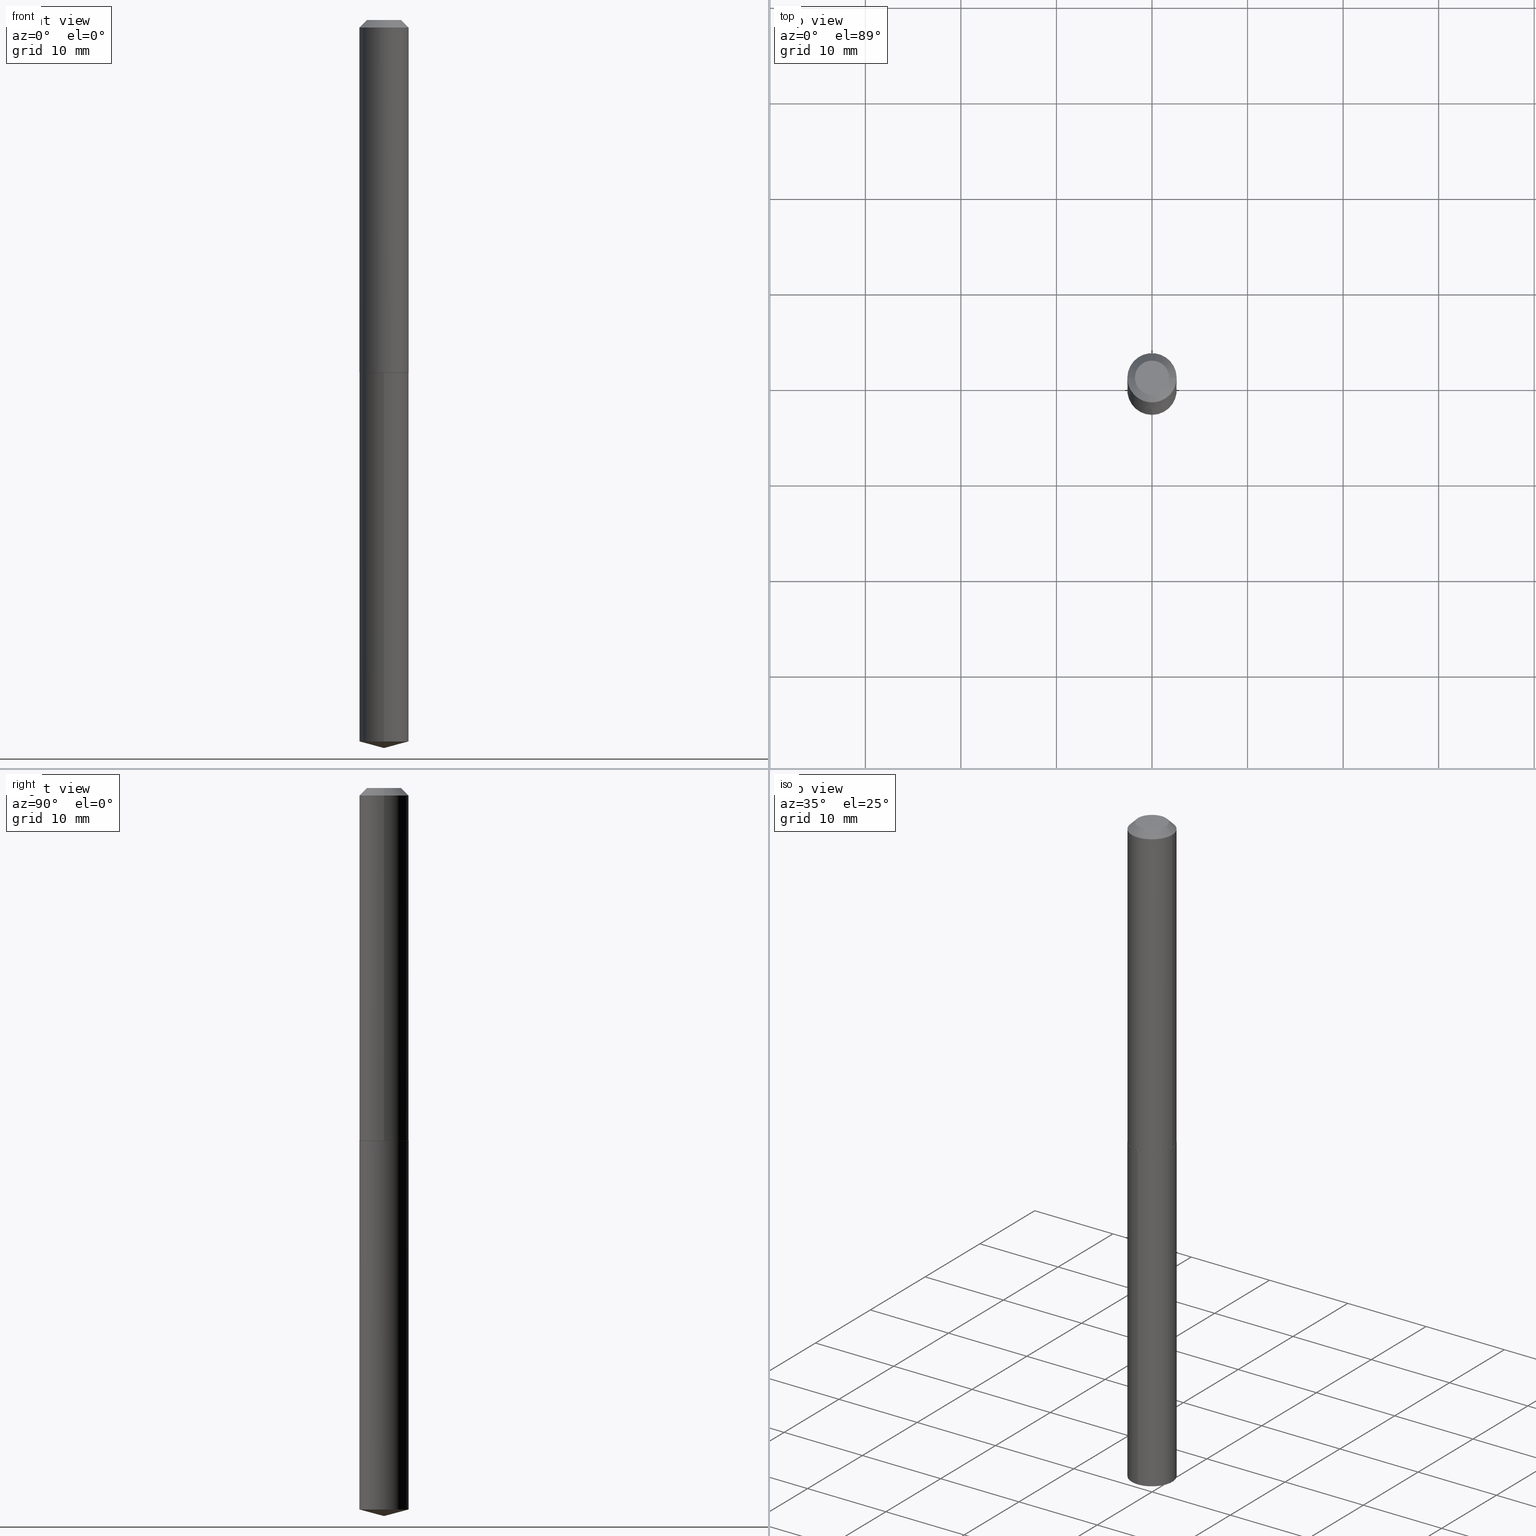
[diagram: canonical four-view strip — front | top / right | iso, engineering-drawing reading convention]
A machine part, canonical four-view strip (front | top / right | iso — engineering-drawing reading convention). The complete STEP part file that produces these views, byte-faithful:
ISO-10303-21;
HEADER;
FILE_DESCRIPTION (( 'STEP AP203' ),
    '1' );
FILE_NAME ('58047.STEP',
    '2024-04-23T00:52:28',
    ( '' ),
    ( '' ),
    'SwSTEP 2.0',
    'SolidWorks 2023',
    '' );
FILE_SCHEMA (( 'CONFIG_CONTROL_DESIGN' ));
ENDSEC;

DATA;
#1 = FACE_OUTER_BOUND ( 'NONE', #98, .T. ) ;
#2 = EDGE_CURVE ( 'NONE', #268, #196, #209, .T. ) ;
#3 = LINE ( 'NONE', #76, #219 ) ;
#4 = CARTESIAN_POINT ( 'NONE',  ( -8.894219840177136359E-28, 1.269850139145737589E-13, 36.37007874015748143 ) ) ;
#5 = LINE ( 'NONE', #186, #68 ) ;
#6 = APPROVAL_DATE_TIME ( #333, #191 ) ;
#7 = AXIS2_PLACEMENT_3D ( 'NONE', #4, #278, #222 ) ;
#8 = ORIENTED_EDGE ( 'NONE', *, *, #261, .F. ) ;
#9 = VERTEX_POINT ( 'NONE', #299 ) ;
#10 = AXIS2_PLACEMENT_3D ( 'NONE', #260, #97, #371 ) ;
#11 = VERTEX_POINT ( 'NONE', #18 ) ;
#12 = EDGE_LOOP ( 'NONE', ( #108, #129 ) ) ;
#13 = DIRECTION ( 'NONE',  ( 6.863315791527702148E-15, 0.9659258262890705327, 0.2588190451025121908 ) ) ;
#14 = EDGE_CURVE ( 'NONE', #296, #9, #124, .T. ) ;
#15 = ORIENTED_EDGE ( 'NONE', *, *, #67, .F. ) ;
#16 = CIRCLE ( 'NONE', #227, 0.1015500000000000014 ) ;
#17 = DIRECTION ( 'NONE',  ( 1.000000000000000000, -6.982962677686270655E-15, 0.000000000000000000 ) ) ;
#18 = CARTESIAN_POINT ( 'NONE',  ( 7.336430638959078659E-29, -1.047440933153284496E-14, -3.000000000000000444 ) ) ;
#19 = CARTESIAN_POINT ( 'NONE',  ( 3.553510722267622762E-29, -5.073471533472975620E-15, -1.453100000000000502 ) ) ;
#20 = APPROVAL_DATE_TIME ( #174, #295 ) ;
#21 = ORIENTED_EDGE ( 'NONE', *, *, #170, .F. ) ;
#22 = CARTESIAN_POINT ( 'NONE',  ( 7.336407175846698698E-29, -1.047444293204521195E-14, -3.000000000000000444 ) ) ;
#23 = FACE_OUTER_BOUND ( 'NONE', #345, .T. ) ;
#24 = EDGE_CURVE ( 'NONE', #34, #196, #38, .T. ) ;
#25 = DIRECTION ( 'NONE',  ( 0.7071067811867406405, -2.468850131084279700E-15, 0.7071067811863543939 ) ) ;
#26 = AXIS2_PLACEMENT_3D ( 'NONE', #292, #46, #316 ) ;
#27 = CC_DESIGN_PERSON_AND_ORGANIZATION_ASSIGNMENT ( #377, #347, ( #122 ) ) ;
#28 = AXIS2_PLACEMENT_3D ( 'NONE', #236, #81, #266 ) ;
#29 = PLANE ( 'NONE',  #262 ) ;
#30 = DIRECTION ( 'NONE',  ( 6.982962677686265922E-15, 1.000000000000000000, -3.491469777177614591E-15 ) ) ;
#31 = MANIFOLD_SOLID_BREP ( 'Body-Move/Copy2[2]', #111 ) ;
#32 = CARTESIAN_POINT ( 'NONE',  ( -0.1010500000000002785, -4.352818871813282583E-15, -1.453100000000000058 ) ) ;
#33 = CONICAL_SURFACE ( 'NONE', #7, 146.9311341562581674, 1.308996938995752535 ) ;
#34 = VERTEX_POINT ( 'NONE', #351 ) ;
#35 = MANIFOLD_SOLID_BREP ( 'Body-Move/Copy2[1]', #368 ) ;
#36 = EDGE_LOOP ( 'NONE', ( #166, #64, #205, #259 ) ) ;
#37 = ORIENTED_EDGE ( 'NONE', *, *, #221, .T. ) ;
#38 = CIRCLE ( 'NONE', #26, 0.1015500000000000014 ) ;
#39 = CONICAL_SURFACE ( 'NONE', #298, 0.1015500000000001818, 0.7853981633977213939 ) ;
#40 = CARTESIAN_POINT ( 'NONE',  ( 7.215561481644546196E-16, 0.1015499999999896485, -2.972789759508621010 ) ) ;
#41 = EDGE_CURVE ( 'NONE', #70, #62, #16, .T. ) ;
#42 = ORIENTED_EDGE ( 'NONE', *, *, #14, .F. ) ;
#43 = DIRECTION ( 'NONE',  ( -2.445468806185136597E-29, 3.491481338843145583E-15, 1.000000000000000000 ) ) ;
#44 = VERTEX_POINT ( 'NONE', #271 ) ;
#45 = LENGTH_MEASURE_WITH_UNIT ( LENGTH_MEASURE( 0.02539999999999999897 ), #202 );
#46 = DIRECTION ( 'NONE',  ( -2.445468806185136597E-29, 3.491481338843145583E-15, 1.000000000000000000 ) ) ;
#47 = DIRECTION ( 'NONE',  ( 1.000000000000000000, 0.000000000000000000, 0.000000000000000000 ) ) ;
#48 = ORIENTED_EDGE ( 'NONE', *, *, #383, .T. ) ;
#49 = CALENDAR_DATE ( 2024, 22, 4 ) ;
#50 = ORIENTED_EDGE ( 'NONE', *, *, #83, .F. ) ;
#51 = DIRECTION ( 'NONE',  ( -6.745023994389847810E-15, -0.9659258262890687563, 0.2588190451025189631 ) ) ;
#52 = CARTESIAN_POINT ( 'NONE',  ( 0.1015500000000000985, -7.091198599190409793E-16, 4.951757515820777276E-30 ) ) ;
#53 = DIRECTION ( 'NONE',  ( -0.7071067811867406405, 7.493145998871051513E-15, 0.7071067811863543939 ) ) ;
#54 = PRODUCT_DEFINITION_FORMATION_WITH_SPECIFIED_SOURCE ( 'ANY', '', #122, .NOT_KNOWN. ) ;
#55 = FACE_OUTER_BOUND ( 'NONE', #136, .T. ) ;
#56 = CARTESIAN_POINT ( 'NONE',  ( 7.215561481644172473E-16, 0.1015499999999949360, -1.453100000000000724 ) ) ;
#57 = PERSON ( 'UNSPECIFIED', 'UNSPECIFIED', 'UNSPECIFIED', ('UNSPECIFIED'), ('UNSPECIFIED'), ('UNSPECIFIED') ) ;
#58 = DIRECTION ( 'NONE',  ( -2.438088387897960049E-29, 3.491481338843145188E-15, 1.000000000000000000 ) ) ;
#59 = DIRECTION ( 'NONE',  ( 1.000000000000000000, -6.982962677686270655E-15, 0.000000000000000000 ) ) ;
#60 = ORIENTED_EDGE ( 'NONE', *, *, #2, .F. ) ;
#61 = AXIS2_PLACEMENT_3D ( 'NONE', #19, #354, #144 ) ;
#62 = VERTEX_POINT ( 'NONE', #232 ) ;
#63 = ADVANCED_FACE ( 'NONE', ( #380 ), #387, .T. ) ;
#64 = ORIENTED_EDGE ( 'NONE', *, *, #2, .T. ) ;
#65 = FACE_OUTER_BOUND ( 'NONE', #12, .T. ) ;
#66 = CARTESIAN_POINT ( 'NONE',  ( 3.553510722267622201E-29, -5.073471533472974831E-15, -1.453100000000000058 ) ) ;
#67 = EDGE_CURVE ( 'NONE', #62, #70, #385, .T. ) ;
#68 = VECTOR ( 'NONE', #25, 39.37007874015748143 ) ;
#69 = ORIENTED_EDGE ( 'NONE', *, *, #335, .F. ) ;
#70 = VERTEX_POINT ( 'NONE', #112 ) ;
#71 = DIRECTION ( 'NONE',  ( 0.000000000000000000, 0.000000000000000000, 1.000000000000000000 ) ) ;
#72 = CYLINDRICAL_SURFACE ( 'NONE', #369, 0.1015500000000000985 ) ;
#73 = DIRECTION ( 'NONE',  ( 1.000000000000000000, -6.982962677686268288E-15, 4.876182450887181548E-29 ) ) ;
#74 = ORIENTED_EDGE ( 'NONE', *, *, #390, .T. ) ;
#75 = PERSON_AND_ORGANIZATION_ROLE ( 'creator' ) ;
#76 = CARTESIAN_POINT ( 'NONE',  ( -7.091198599190048889E-16, -0.1015500000000050806, -1.453100000000000058 ) ) ;
#77 = DIRECTION ( 'NONE',  ( 0.7071067811865453523, -7.319954787623248157E-15, -0.7071067811865496822 ) ) ;
#78 = CIRCLE ( 'NONE', #302, 0.1015500000000001818 ) ;
#79 = APPLICATION_PROTOCOL_DEFINITION ( 'international standard', 'config_control_design', 1994, #367 ) ;
#80 = ORIENTED_EDGE ( 'NONE', *, *, #329, .F. ) ;
#81 = DIRECTION ( 'NONE',  ( -2.445476879653025939E-29, 3.491469777177614591E-15, 1.000000000000000000 ) ) ;
#82 = ORIENTED_EDGE ( 'NONE', *, *, #365, .F. ) ;
#83 = EDGE_CURVE ( 'NONE', #296, #319, #323, .T. ) ;
#84 = VECTOR ( 'NONE', #77, 39.37007874015748143 ) ;
#85 = CIRCLE ( 'NONE', #132, 0.1015500000000001818 ) ;
#86 = CARTESIAN_POINT ( 'NONE',  ( 3.552287987864530521E-29, -5.071725792803555694E-15, -1.452600000000000557 ) ) ;
#87 = CC_DESIGN_PERSON_AND_ORGANIZATION_ASSIGNMENT ( #109, #75, ( #179 ) ) ;
#88 = DIRECTION ( 'NONE',  ( -6.982962677686266711E-15, -1.000000000000000000, 5.380301316916323039E-15 ) ) ;
#89 = CARTESIAN_POINT ( 'NONE',  ( 0.1015500000000000014, -8.182286517578893896E-16, -0.03125000000000019429 ) ) ;
#90 = VECTOR ( 'NONE', #361, 39.37007874015748143 ) ;
#91 = FACE_OUTER_BOUND ( 'NONE', #321, .T. ) ;
#92 = DATE_AND_TIME ( #225, #274 ) ;
#93 = CARTESIAN_POINT ( 'NONE',  ( 6.296697863213853370E-29, -1.145071415122124769E-15, -1.453100000000000502 ) ) ;
#94 = AXIS2_PLACEMENT_3D ( 'NONE', #356, #215, #73 ) ;
#95 = ADVANCED_FACE ( 'NONE', ( #23 ), #150, .T. ) ;
#96 = ORIENTED_EDGE ( 'NONE', *, *, #247, .T. ) ;
#97 = DIRECTION ( 'NONE',  ( -2.445468806185136597E-29, 3.491481338843145583E-15, 1.000000000000000000 ) ) ;
#98 = EDGE_LOOP ( 'NONE', ( #226, #115, #104 ) ) ;
#99 = ADVANCED_FACE ( 'NONE', ( #168 ), #194, .T. ) ;
#100 = ORIENTED_EDGE ( 'NONE', *, *, #83, .T. ) ;
#101 = PRODUCT_RELATED_PRODUCT_CATEGORY ( 'detail', '', ( #122 ) ) ;
#102 = AXIS2_PLACEMENT_3D ( 'NONE', #203, #287, #244 ) ;
#103 = CIRCLE ( 'NONE', #113, 0.1015500000000000014 ) ;
#104 = ORIENTED_EDGE ( 'NONE', *, *, #185, .F. ) ;
#105 = APPLICATION_PROTOCOL_DEFINITION ( 'international standard', 'config_control_design', 1994, #307 ) ;
#106 = LOCAL_TIME ( 20, 52, 28.00000000000000000, #126 ) ;
#107 = DIRECTION ( 'NONE',  ( -2.445476879653025939E-29, 3.491469777177614591E-15, 1.000000000000000000 ) ) ;
#108 = ORIENTED_EDGE ( 'NONE', *, *, #329, .T. ) ;
#109 = PERSON_AND_ORGANIZATION ( #57, #331 ) ;
#110 = CARTESIAN_POINT ( 'NONE',  ( 3.553510722267622762E-29, -5.073471533472975620E-15, -1.453100000000000502 ) ) ;
#111 = CLOSED_SHELL ( 'NONE', ( #99, #304, #176, #257, #300, #95, #157, #327 ) ) ;
#112 = CARTESIAN_POINT ( 'NONE',  ( 7.215561481644546196E-16, 0.1015499999999949360, -1.453100000000000724 ) ) ;
#113 = AXIS2_PLACEMENT_3D ( 'NONE', #310, #373, #178 ) ;
#114 = PERSON_AND_ORGANIZATION ( #57, #331 ) ;
#115 = ORIENTED_EDGE ( 'NONE', *, *, #335, .T. ) ;
#116 = EDGE_CURVE ( 'NONE', #374, #62, #3, .T. ) ;
#117 = DIRECTION ( 'NONE',  ( -2.445476879653026220E-29, 3.491469777177614591E-15, 1.000000000000000000 ) ) ;
#118 = PERSON_AND_ORGANIZATION ( #57, #331 ) ;
#119 = CARTESIAN_POINT ( 'NONE',  ( 7.269876893391419667E-29, -1.037942239948364055E-14, -2.972789759508620122 ) ) ;
#120 = DIMENSIONAL_EXPONENTS ( 1.000000000000000000, 0.000000000000000000, 0.000000000000000000, 0.000000000000000000, 0.000000000000000000, 0.000000000000000000, 0.000000000000000000 ) ;
#121 = DIRECTION ( 'NONE',  ( -0.7071067811865453523, 2.468850131082234184E-15, -0.7071067811865496822 ) ) ;
#122 = PRODUCT ( '58047', '58047', '', ( #293 ) ) ;
#123 = DIRECTION ( 'NONE',  ( 1.000000000000000000, -6.982962677686270655E-15, 0.000000000000000000 ) ) ;
#124 = CIRCLE ( 'NONE', #229, 0.1010500000000002785 ) ;
#125 = DIRECTION ( 'NONE',  ( 2.445476879653025659E-29, -3.491469777177614591E-15, -1.000000000000000000 ) ) ;
#126 = COORDINATED_UNIVERSAL_TIME_OFFSET ( 5, 0, .BEHIND. ) ;
#127 = CARTESIAN_POINT ( 'NONE',  ( 3.552287987864530521E-29, -5.071725792803555694E-15, -1.452600000000000557 ) ) ;
#128 = PERSON_AND_ORGANIZATION ( #57, #331 ) ;
#129 = ORIENTED_EDGE ( 'NONE', *, *, #141, .T. ) ;
#130 = ORIENTED_EDGE ( 'NONE', *, *, #14, .T. ) ;
#131 = DIRECTION ( 'NONE',  ( -2.445468806185136597E-29, 3.491481338843145583E-15, 1.000000000000000000 ) ) ;
#132 = AXIS2_PLACEMENT_3D ( 'NONE', #86, #188, #305 ) ;
#133 = EDGE_CURVE ( 'NONE', #237, #196, #207, .T. ) ;
#134 = EDGE_LOOP ( 'NONE', ( #177, #290 ) ) ;
#135 = DIRECTION ( 'NONE',  ( -2.445468806185136597E-29, 3.491481338843145583E-15, 1.000000000000000000 ) ) ;
#136 = EDGE_LOOP ( 'NONE', ( #370, #37, #15, #308 ) ) ;
#137 = AXIS2_PLACEMENT_3D ( 'NONE', #272, #314, #389 ) ;
#138 = CIRCLE ( 'NONE', #10, 0.07030000000000000138 ) ;
#139 = CARTESIAN_POINT ( 'NONE',  ( 3.553510722267622762E-29, -5.073471533472975620E-15, -1.453100000000000502 ) ) ;
#140 = COORDINATED_UNIVERSAL_TIME_OFFSET ( 5, 0, .BEHIND. ) ;
#141 = EDGE_CURVE ( 'NONE', #268, #44, #324, .T. ) ;
#142 = DIRECTION ( 'NONE',  ( -6.982962677686266711E-15, -1.000000000000000000, 2.690150658458161520E-15 ) ) ;
#143 = CARTESIAN_POINT ( 'NONE',  ( -7.091198599189680096E-16, -0.1015500000000104236, -2.972789759508619678 ) ) ;
#144 = DIRECTION ( 'NONE',  ( -6.982962677686266711E-15, -1.000000000000000000, 2.690150658458161520E-15 ) ) ;
#145 = PERSON_AND_ORGANIZATION ( #57, #331 ) ;
#146 = ORIENTED_EDGE ( 'NONE', *, *, #379, .F. ) ;
#147 = ADVANCED_FACE ( 'NONE', ( #55 ), #325, .T. ) ;
#148 = CIRCLE ( 'NONE', #358, 0.1010500000000002785 ) ;
#149 = ADVANCED_BREP_SHAPE_REPRESENTATION ( '58047', ( #35, #31, #249 ), #363 ) ;
#150 = CYLINDRICAL_SURFACE ( 'NONE', #137, 0.1015500000000000985 ) ;
#151 = APPROVAL_STATUS ( 'not_yet_approved' ) ;
#152 = CC_DESIGN_PERSON_AND_ORGANIZATION_ASSIGNMENT ( #118, #251, ( #165 ) ) ;
#153 = CONICAL_SURFACE ( 'NONE', #279, 146.9311341562581674, 1.308996938995752535 ) ;
#154 = CARTESIAN_POINT ( 'NONE',  ( 3.553510722267622762E-29, -5.073471533472975620E-15, -1.453100000000000502 ) ) ;
#155 = LINE ( 'NONE', #56, #90 ) ;
#156 = CARTESIAN_POINT ( 'NONE',  ( 3.552287987864530521E-29, -5.071725792803555694E-15, -1.452600000000000557 ) ) ;
#157 = ADVANCED_FACE ( 'NONE', ( #175 ), #348, .T. ) ;
#158 = AXIS2_PLACEMENT_3D ( 'NONE', #93, #58, #250 ) ;
#159 = DIRECTION ( 'NONE',  ( 2.445468806185136597E-29, -3.491481338843145583E-15, -1.000000000000000000 ) ) ;
#160 = CC_DESIGN_DATE_AND_TIME_ASSIGNMENT ( #206, #315, ( #179 ) ) ;
#161 = SHAPE_DEFINITION_REPRESENTATION ( #364, #149 ) ;
#162 = EDGE_LOOP ( 'NONE', ( #48, #339, #82, #253 ) ) ;
#163 = ORIENTED_EDGE ( 'NONE', *, *, #234, .T. ) ;
#164 = CARTESIAN_POINT ( 'NONE',  ( -1.572288661602391346E-48, 2.244811509095903990E-34, 6.429395695523583120E-20 ) ) ;
#165 = SECURITY_CLASSIFICATION ( '', '', #224 ) ;
#166 = ORIENTED_EDGE ( 'NONE', *, *, #141, .F. ) ;
#167 = LINE ( 'NONE', #22, #184 ) ;
#168 = FACE_OUTER_BOUND ( 'NONE', #36, .T. ) ;
#169 = PERSON_AND_ORGANIZATION ( #57, #331 ) ;
#170 = EDGE_CURVE ( 'NONE', #319, #34, #359, .T. ) ;
#171 = ORIENTED_EDGE ( 'NONE', *, *, #24, .T. ) ;
#172 = DATE_AND_TIME ( #322, #220 ) ;
#173 = DIRECTION ( 'NONE',  ( 1.000000000000000000, -6.982962677686269077E-15, 0.000000000000000000 ) ) ;
#174 = DATE_AND_TIME ( #49, #372 ) ;
#175 = FACE_OUTER_BOUND ( 'NONE', #263, .T. ) ;
#176 = ADVANCED_FACE ( 'NONE', ( #189 ), #39, .T. ) ;
#177 = ORIENTED_EDGE ( 'NONE', *, *, #67, .T. ) ;
#178 = DIRECTION ( 'NONE',  ( 1.000000000000000000, -6.982962677686266711E-15, 0.000000000000000000 ) ) ;
#179 = PRODUCT_DEFINITION ( 'UNKNOWN', '', #54, #341 ) ;
#180 = VECTOR ( 'NONE', #53, 39.37007874015748143 ) ;
#181 = ORIENTED_EDGE ( 'NONE', *, *, #24, .F. ) ;
#182 = DIRECTION ( 'NONE',  ( -2.445468806185136877E-29, 3.491481338843145188E-15, 1.000000000000000000 ) ) ;
#183 = AXIS2_PLACEMENT_3D ( 'NONE', #294, #159, #276 ) ;
#184 = VECTOR ( 'NONE', #51, 39.37007874015748854 ) ;
#185 = EDGE_CURVE ( 'NONE', #374, #309, #326, .T. ) ;
#186 = CARTESIAN_POINT ( 'NONE',  ( 0.1015500000000001818, -5.780845652722597265E-15, -1.452600000000000557 ) ) ;
#187 = CC_DESIGN_APPROVAL ( #191, ( #165 ) ) ;
#188 = DIRECTION ( 'NONE',  ( -2.445468806185136597E-29, 3.491481338843145583E-15, 1.000000000000000000 ) ) ;
#189 = FACE_OUTER_BOUND ( 'NONE', #376, .T. ) ;
#190 = APPROVAL_ROLE ( '' ) ;
#191 = APPROVAL ( #151, 'UNSPECIFIED' ) ;
#192 = ORIENTED_EDGE ( 'NONE', *, *, #261, .T. ) ;
#193 = PLANE ( 'NONE',  #375 ) ;
#194 = CONICAL_SURFACE ( 'NONE', #102, 0.1015500000000000014, 0.7853981633974452814 ) ;
#195 = ORIENTED_EDGE ( 'NONE', *, *, #133, .T. ) ;
#196 = VERTEX_POINT ( 'NONE', #89 ) ;
#197 = LINE ( 'NONE', #285, #200 ) ;
#198 = EDGE_LOOP ( 'NONE', ( #281, #228, #311, #283 ) ) ;
#199 = DIRECTION ( 'NONE',  ( -1.000000000000000000, 6.982962677686265922E-15, -4.876176775795935793E-29 ) ) ;
#200 = VECTOR ( 'NONE', #13, 39.37007874015748854 ) ;
#201 = EDGE_LOOP ( 'NONE', ( #69, #74, #146 ) ) ;
#202 =( LENGTH_UNIT ( ) NAMED_UNIT ( * ) SI_UNIT ( $, .METRE. ) );
#203 = CARTESIAN_POINT ( 'NONE',  ( 7.642090019328598283E-31, -1.091087918388489651E-16, -0.03125000000000019429 ) ) ;
#204 = APPROVAL_STATUS ( 'not_yet_approved' ) ;
#205 = ORIENTED_EDGE ( 'NONE', *, *, #365, .T. ) ;
#206 = DATE_AND_TIME ( #210, #231 ) ;
#207 = LINE ( 'NONE', #52, #289 ) ;
#208 = CIRCLE ( 'NONE', #28, 0.1015500000000000014 ) ;
#209 = LINE ( 'NONE', #242, #84 ) ;
#210 = CALENDAR_DATE ( 2024, 22, 4 ) ;
#211 = ADVANCED_FACE ( 'NONE', ( #218 ), #153, .T. ) ;
#212 = ORIENTED_EDGE ( 'NONE', *, *, #383, .F. ) ;
#213 = CC_DESIGN_PERSON_AND_ORGANIZATION_ASSIGNMENT ( #114, #362, ( #54 ) ) ;
#214 = DIRECTION ( 'NONE',  ( -2.445476879653025939E-29, 3.491469777177614591E-15, 1.000000000000000000 ) ) ;
#215 = DIRECTION ( 'NONE',  ( -2.445468806185136597E-29, 3.491481338843145583E-15, 1.000000000000000000 ) ) ;
#216 = AXIS2_PLACEMENT_3D ( 'NONE', #119, #246, #88 ) ;
#217 = CARTESIAN_POINT ( 'NONE',  ( -0.1015500000000000985, 7.215561481643824388E-16, -4.995178584153862006E-30 ) ) ;
#218 = FACE_OUTER_BOUND ( 'NONE', #201, .T. ) ;
#219 = VECTOR ( 'NONE', #117, 39.37007874015748143 ) ;
#220 = LOCAL_TIME ( 20, 52, 28.00000000000000000, #381 ) ;
#221 = EDGE_CURVE ( 'NONE', #309, #70, #155, .T. ) ;
#222 = DIRECTION ( 'NONE',  ( -6.982962677686265922E-15, -1.000000000000000000, 3.510303681827565097E-15 ) ) ;
#223 = FACE_OUTER_BOUND ( 'NONE', #336, .T. ) ;
#224 = SECURITY_CLASSIFICATION_LEVEL ( 'unclassified' ) ;
#225 = CALENDAR_DATE ( 2024, 22, 4 ) ;
#226 = ORIENTED_EDGE ( 'NONE', *, *, #390, .F. ) ;
#227 = AXIS2_PLACEMENT_3D ( 'NONE', #139, #107, #142 ) ;
#228 = ORIENTED_EDGE ( 'NONE', *, *, #379, .T. ) ;
#229 = AXIS2_PLACEMENT_3D ( 'NONE', #344, #265, #173 ) ;
#230 = ADVANCED_FACE ( 'NONE', ( #1 ), #33, .T. ) ;
#231 = LOCAL_TIME ( 20, 52, 28.00000000000000000, #140 ) ;
#232 = CARTESIAN_POINT ( 'NONE',  ( -7.091198599190048889E-16, -0.1015500000000050806, -1.453100000000000058 ) ) ;
#233 =( NAMED_UNIT ( * ) SI_UNIT ( $, .STERADIAN. ) SOLID_ANGLE_UNIT ( ) );
#234 = EDGE_CURVE ( 'NONE', #9, #237, #5, .T. ) ;
#235 = CARTESIAN_POINT ( 'NONE',  ( 3.553510722267622762E-29, -5.073471533472975620E-15, -1.453100000000000502 ) ) ;
#236 = CARTESIAN_POINT ( 'NONE',  ( 7.269876893391419667E-29, -1.037942239948364055E-14, -2.972789759508620122 ) ) ;
#237 = VERTEX_POINT ( 'NONE', #328 ) ;
#238 = CARTESIAN_POINT ( 'NONE',  ( -0.1015500000000001818, -4.350169644639172171E-15, -1.452600000000000557 ) ) ;
#239 = ADVANCED_FACE ( 'NONE', ( #301 ), #29, .F. ) ;
#240 = CC_DESIGN_SECURITY_CLASSIFICATION ( #165, ( #54 ) ) ;
#241 = UNCERTAINTY_MEASURE_WITH_UNIT (LENGTH_MEASURE( 1.000000000000000082E-05 ), #297, 'distance_accuracy_value', 'NONE');
#242 = CARTESIAN_POINT ( 'NONE',  ( 0.1015500000000000014, -8.057923635125481273E-16, -0.03125000000000019429 ) ) ;
#243 = PERSON_AND_ORGANIZATION ( #57, #331 ) ;
#244 = DIRECTION ( 'NONE',  ( -1.000000000000000000, 6.982962677686266711E-15, 0.000000000000000000 ) ) ;
#245 = APPROVAL_PERSON_ORGANIZATION ( #128, #191, #190 ) ;
#246 = DIRECTION ( 'NONE',  ( -2.445476879653025939E-29, 3.491469777177614591E-15, 1.000000000000000000 ) ) ;
#247 = EDGE_CURVE ( 'NONE', #44, #34, #275, .T. ) ;
#248 = CARTESIAN_POINT ( 'NONE',  ( -0.1015500000000000014, 6.000110680801914842E-16, -0.03125000000000019429 ) ) ;
#249 = AXIS2_PLACEMENT_3D ( 'NONE', #355, #71, #47 ) ;
#250 = DIRECTION ( 'NONE',  ( 1.000000000000000000, -6.982962677686265922E-15, 4.876176775795935793E-29 ) ) ;
#251 = PERSON_AND_ORGANIZATION_ROLE ( 'classification_officer' ) ;
#252 = CALENDAR_DATE ( 2024, 22, 4 ) ;
#253 = ORIENTED_EDGE ( 'NONE', *, *, #133, .F. ) ;
#254 = VECTOR ( 'NONE', #182, 39.37007874015748143 ) ;
#255 = DIRECTION ( 'NONE',  ( 2.438088387897960049E-29, -3.491481338843145188E-15, -1.000000000000000000 ) ) ;
#256 = AXIS2_PLACEMENT_3D ( 'NONE', #156, #334, #59 ) ;
#257 = ADVANCED_FACE ( 'NONE', ( #91 ), #357, .F. ) ;
#258 = ORIENTED_EDGE ( 'NONE', *, *, #353, .T. ) ;
#259 = ORIENTED_EDGE ( 'NONE', *, *, #247, .F. ) ;
#260 = CARTESIAN_POINT ( 'NONE',  ( -3.144577323204782692E-48, 4.489623018191807979E-34, 1.285879139104716624E-19 ) ) ;
#261 = EDGE_CURVE ( 'NONE', #319, #237, #85, .T. ) ;
#262 = AXIS2_PLACEMENT_3D ( 'NONE', #154, #125, #30 ) ;
#263 = EDGE_LOOP ( 'NONE', ( #60, #80, #96, #171 ) ) ;
#264 = APPROVAL_ROLE ( '' ) ;
#265 = DIRECTION ( 'NONE',  ( -2.445468806185136597E-29, 3.491481338843145583E-15, 1.000000000000000000 ) ) ;
#266 = DIRECTION ( 'NONE',  ( -6.982962677686266711E-15, -1.000000000000000000, 5.380301316916323039E-15 ) ) ;
#267 = APPROVAL ( #204, 'UNSPECIFIED' ) ;
#268 = VERTEX_POINT ( 'NONE', #366 ) ;
#269 = PERSON_AND_ORGANIZATION_ROLE ( 'creator' ) ;
#270 = AXIS2_PLACEMENT_3D ( 'NONE', #110, #378, #350 ) ;
#271 = CARTESIAN_POINT ( 'NONE',  ( -0.07030000000000000138, 5.454566721607680185E-16, 1.285879139068480493E-19 ) ) ;
#272 = CARTESIAN_POINT ( 'NONE',  ( 0.000000000000000000, 0.000000000000000000, 0.000000000000000000 ) ) ;
#273 = AXIS2_PLACEMENT_3D ( 'NONE', #235, #214, #382 ) ;
#274 = LOCAL_TIME ( 20, 52, 28.00000000000000000, #277 ) ;
#275 = LINE ( 'NONE', #248, #312 ) ;
#276 = DIRECTION ( 'NONE',  ( -1.000000000000000000, 6.982962677686266711E-15, 0.000000000000000000 ) ) ;
#277 = COORDINATED_UNIVERSAL_TIME_OFFSET ( 5, 0, .BEHIND. ) ;
#278 = DIRECTION ( 'NONE',  ( -2.445476879653025939E-29, 3.491469777177614591E-15, 1.000000000000000000 ) ) ;
#279 = AXIS2_PLACEMENT_3D ( 'NONE', #303, #332, #330 ) ;
#280 = DIRECTION ( 'NONE',  ( -2.445468806185136597E-29, 3.491481338843145583E-15, 1.000000000000000000 ) ) ;
#281 = ORIENTED_EDGE ( 'NONE', *, *, #221, .F. ) ;
#282 = DIRECTION ( 'NONE',  ( 1.000000000000000000, -6.982962677686265922E-15, 4.876176775795935232E-29 ) ) ;
#283 = ORIENTED_EDGE ( 'NONE', *, *, #41, .F. ) ;
#284 = DIRECTION ( 'NONE',  ( 1.000000000000000000, -6.982962677686269077E-15, 0.000000000000000000 ) ) ;
#285 = CARTESIAN_POINT ( 'NONE',  ( 7.336430844702878212E-29, -1.047440933153284496E-14, -3.000000000000000444 ) ) ;
#286 = CC_DESIGN_PERSON_AND_ORGANIZATION_ASSIGNMENT ( #145, #269, ( #54 ) ) ;
#287 = DIRECTION ( 'NONE',  ( 2.445468806185136597E-29, -3.491481338843145583E-15, -1.000000000000000000 ) ) ;
#288 = APPROVAL_STATUS ( 'not_yet_approved' ) ;
#289 = VECTOR ( 'NONE', #318, 39.37007874015748143 ) ;
#290 = ORIENTED_EDGE ( 'NONE', *, *, #41, .T. ) ;
#291 = CC_DESIGN_APPROVAL ( #295, ( #54 ) ) ;
#292 = CARTESIAN_POINT ( 'NONE',  ( 7.642090019328598283E-31, -1.091087918388489651E-16, -0.03125000000000019429 ) ) ;
#293 = MECHANICAL_CONTEXT ( 'NONE', #307, 'mechanical' ) ;
#294 = CARTESIAN_POINT ( 'NONE',  ( 7.642090019328598283E-31, -1.091087918388489651E-16, -0.03125000000000019429 ) ) ;
#295 = APPROVAL ( #288, 'UNSPECIFIED' ) ;
#296 = VERTEX_POINT ( 'NONE', #32 ) ;
#297 =( CONVERSION_BASED_UNIT ( 'INCH', #45 ) LENGTH_UNIT ( ) NAMED_UNIT ( #120 ) );
#298 = AXIS2_PLACEMENT_3D ( 'NONE', #127, #280, #123 ) ;
#299 = CARTESIAN_POINT ( 'NONE',  ( 0.1010500000000002785, -5.779099912053174184E-15, -1.453100000000000058 ) ) ;
#300 = ADVANCED_FACE ( 'NONE', ( #223 ), #349, .T. ) ;
#301 = FACE_OUTER_BOUND ( 'NONE', #134, .T. ) ;
#302 = AXIS2_PLACEMENT_3D ( 'NONE', #388, #43, #17 ) ;
#303 = CARTESIAN_POINT ( 'NONE',  ( -8.894219840177136359E-28, 1.269850139145737589E-13, 36.37007874015748143 ) ) ;
#304 = ADVANCED_FACE ( 'NONE', ( #306 ), #72, .T. ) ;
#305 = DIRECTION ( 'NONE',  ( 1.000000000000000000, -6.982962677686270655E-15, 0.000000000000000000 ) ) ;
#306 = FACE_OUTER_BOUND ( 'NONE', #162, .T. ) ;
#307 = APPLICATION_CONTEXT ( 'configuration controlled 3d designs of mechanical parts and assemblies' ) ;
#308 = ORIENTED_EDGE ( 'NONE', *, *, #116, .F. ) ;
#309 = VERTEX_POINT ( 'NONE', #40 ) ;
#310 = CARTESIAN_POINT ( 'NONE',  ( 7.642090019328598283E-31, -1.091087918388489651E-16, -0.03125000000000019429 ) ) ;
#311 = ORIENTED_EDGE ( 'NONE', *, *, #116, .T. ) ;
#312 = VECTOR ( 'NONE', #121, 39.37007874015748143 ) ;
#313 = APPROVAL_DATE_TIME ( #172, #267 ) ;
#314 = DIRECTION ( 'NONE',  ( -2.445468806185136597E-29, 3.491481338843145583E-15, 1.000000000000000000 ) ) ;
#315 = DATE_TIME_ROLE ( 'creation_date' ) ;
#316 = DIRECTION ( 'NONE',  ( 1.000000000000000000, -6.982962677686266711E-15, 0.000000000000000000 ) ) ;
#317 =( NAMED_UNIT ( * ) PLANE_ANGLE_UNIT ( ) SI_UNIT ( $, .RADIAN. ) );
#318 = DIRECTION ( 'NONE',  ( -2.445468806185136877E-29, 3.491481338843145188E-15, 1.000000000000000000 ) ) ;
#319 = VERTEX_POINT ( 'NONE', #337 ) ;
#320 = COORDINATED_UNIVERSAL_TIME_OFFSET ( 5, 0, .BEHIND. ) ;
#321 = EDGE_LOOP ( 'NONE', ( #346, #42 ) ) ;
#322 = CALENDAR_DATE ( 2024, 22, 4 ) ;
#323 = LINE ( 'NONE', #238, #180 ) ;
#324 = CIRCLE ( 'NONE', #94, 0.07030000000000000138 ) ;
#325 = CYLINDRICAL_SURFACE ( 'NONE', #270, 0.1015500000000000014 ) ;
#326 = CIRCLE ( 'NONE', #216, 0.1015500000000000014 ) ;
#327 = ADVANCED_FACE ( 'NONE', ( #65 ), #193, .F. ) ;
#328 = CARTESIAN_POINT ( 'NONE',  ( 0.1015500000000001818, -5.780845652722597265E-15, -1.452600000000000557 ) ) ;
#329 = EDGE_CURVE ( 'NONE', #44, #268, #138, .T. ) ;
#330 = DIRECTION ( 'NONE',  ( -6.982962677686265922E-15, -1.000000000000000000, 3.510303681827565097E-15 ) ) ;
#331 = ORGANIZATION ( 'UNSPECIFIED', 'UNSPECIFIED', '' ) ;
#332 = DIRECTION ( 'NONE',  ( -2.445476879653025939E-29, 3.491469777177614591E-15, 1.000000000000000000 ) ) ;
#333 = DATE_AND_TIME ( #252, #106 ) ;
#334 = DIRECTION ( 'NONE',  ( -2.445468806185136597E-29, 3.491481338843145583E-15, 1.000000000000000000 ) ) ;
#335 = EDGE_CURVE ( 'NONE', #11, #309, #197, .T. ) ;
#336 = EDGE_LOOP ( 'NONE', ( #50, #130, #163, #8 ) ) ;
#337 = CARTESIAN_POINT ( 'NONE',  ( -0.1015500000000001818, -4.350169644639172171E-15, -1.452600000000000557 ) ) ;
#338 = DATE_TIME_ROLE ( 'classification_date' ) ;
#339 = ORIENTED_EDGE ( 'NONE', *, *, #170, .T. ) ;
#340 = CC_DESIGN_DATE_AND_TIME_ASSIGNMENT ( #92, #338, ( #165 ) ) ;
#341 = DESIGN_CONTEXT ( 'detailed design', #367, 'design' ) ;
#342 = ORIENTED_EDGE ( 'NONE', *, *, #234, .F. ) ;
#343 = CC_DESIGN_APPROVAL ( #267, ( #179 ) ) ;
#344 = CARTESIAN_POINT ( 'NONE',  ( 3.553510722267622201E-29, -5.073471533472974831E-15, -1.453100000000000058 ) ) ;
#345 = EDGE_LOOP ( 'NONE', ( #21, #192, #195, #181 ) ) ;
#346 = ORIENTED_EDGE ( 'NONE', *, *, #353, .F. ) ;
#347 = PERSON_AND_ORGANIZATION_ROLE ( 'design_owner' ) ;
#348 = CONICAL_SURFACE ( 'NONE', #183, 0.1015500000000000014, 0.7853981633974452814 ) ;
#349 = CONICAL_SURFACE ( 'NONE', #256, 0.1015500000000001818, 0.7853981633977213939 ) ;
#350 = DIRECTION ( 'NONE',  ( -6.982962677686266711E-15, -1.000000000000000000, 2.690150658458161520E-15 ) ) ;
#351 = CARTESIAN_POINT ( 'NONE',  ( -0.1015500000000000014, -1.868861144156819268E-15, -0.03125000000000019429 ) ) ;
#352 = APPROVAL_PERSON_ORGANIZATION ( #169, #295, #264 ) ;
#353 = EDGE_CURVE ( 'NONE', #9, #296, #148, .T. ) ;
#354 = DIRECTION ( 'NONE',  ( -2.445476879653025939E-29, 3.491469777177614591E-15, 1.000000000000000000 ) ) ;
#355 = CARTESIAN_POINT ( 'NONE',  ( 0.000000000000000000, 0.000000000000000000, 0.000000000000000000 ) ) ;
#356 = CARTESIAN_POINT ( 'NONE',  ( -3.144577323204782692E-48, 4.489623018191807979E-34, 1.285879139104716624E-19 ) ) ;
#357 = PLANE ( 'NONE',  #158 ) ;
#358 = AXIS2_PLACEMENT_3D ( 'NONE', #66, #135, #284 ) ;
#359 = LINE ( 'NONE', #217, #254 ) ;
#360 = CARTESIAN_POINT ( 'NONE',  ( 0.000000000000000000, 0.000000000000000000, 0.000000000000000000 ) ) ;
#361 = DIRECTION ( 'NONE',  ( -2.445476879653026220E-29, 3.491469777177614591E-15, 1.000000000000000000 ) ) ;
#362 = PERSON_AND_ORGANIZATION_ROLE ( 'design_supplier' ) ;
#363 =( GEOMETRIC_REPRESENTATION_CONTEXT ( 3 ) GLOBAL_UNCERTAINTY_ASSIGNED_CONTEXT ( ( #241 ) ) GLOBAL_UNIT_ASSIGNED_CONTEXT ( ( #297, #317, #233 ) ) REPRESENTATION_CONTEXT ( 'NONE', 'WORKASPACE' ) );
#364 = PRODUCT_DEFINITION_SHAPE ( 'NONE', 'NONE',  #179 ) ;
#365 = EDGE_CURVE ( 'NONE', #196, #34, #103, .T. ) ;
#366 = CARTESIAN_POINT ( 'NONE',  ( 0.07030000000000000138, -6.440426863779433964E-16, 1.285879139144394873E-19 ) ) ;
#367 = APPLICATION_CONTEXT ( 'configuration controlled 3d designs of mechanical parts and assemblies' ) ;
#368 = CLOSED_SHELL ( 'NONE', ( #147, #230, #211, #63, #239 ) ) ;
#369 = AXIS2_PLACEMENT_3D ( 'NONE', #360, #131, #282 ) ;
#370 = ORIENTED_EDGE ( 'NONE', *, *, #185, .T. ) ;
#371 = DIRECTION ( 'NONE',  ( 1.000000000000000000, -6.982962677686268288E-15, 4.876182450887181548E-29 ) ) ;
#372 = LOCAL_TIME ( 20, 52, 28.00000000000000000, #320 ) ;
#373 = DIRECTION ( 'NONE',  ( -2.445468806185136597E-29, 3.491481338843145583E-15, 1.000000000000000000 ) ) ;
#374 = VERTEX_POINT ( 'NONE', #143 ) ;
#375 = AXIS2_PLACEMENT_3D ( 'NONE', #164, #255, #199 ) ;
#376 = EDGE_LOOP ( 'NONE', ( #258, #100, #212, #342 ) ) ;
#377 = PERSON_AND_ORGANIZATION ( #57, #331 ) ;
#378 = DIRECTION ( 'NONE',  ( -2.445476879653025939E-29, 3.491469777177614591E-15, 1.000000000000000000 ) ) ;
#379 = EDGE_CURVE ( 'NONE', #309, #374, #208, .T. ) ;
#380 = FACE_OUTER_BOUND ( 'NONE', #198, .T. ) ;
#381 = COORDINATED_UNIVERSAL_TIME_OFFSET ( 5, 0, .BEHIND. ) ;
#382 = DIRECTION ( 'NONE',  ( -6.982962677686266711E-15, -1.000000000000000000, 2.690150658458161520E-15 ) ) ;
#383 = EDGE_CURVE ( 'NONE', #237, #319, #78, .T. ) ;
#384 = APPROVAL_ROLE ( '' ) ;
#385 = CIRCLE ( 'NONE', #273, 0.1015500000000000014 ) ;
#386 = APPROVAL_PERSON_ORGANIZATION ( #243, #267, #384 ) ;
#387 = CYLINDRICAL_SURFACE ( 'NONE', #61, 0.1015500000000000014 ) ;
#388 = CARTESIAN_POINT ( 'NONE',  ( 3.552287987864530521E-29, -5.071725792803555694E-15, -1.452600000000000557 ) ) ;
#389 = DIRECTION ( 'NONE',  ( 1.000000000000000000, -6.982962677686265922E-15, 4.876176775795935232E-29 ) ) ;
#390 = EDGE_CURVE ( 'NONE', #11, #374, #167, .T. ) ;
ENDSEC;
END-ISO-10303-21;
